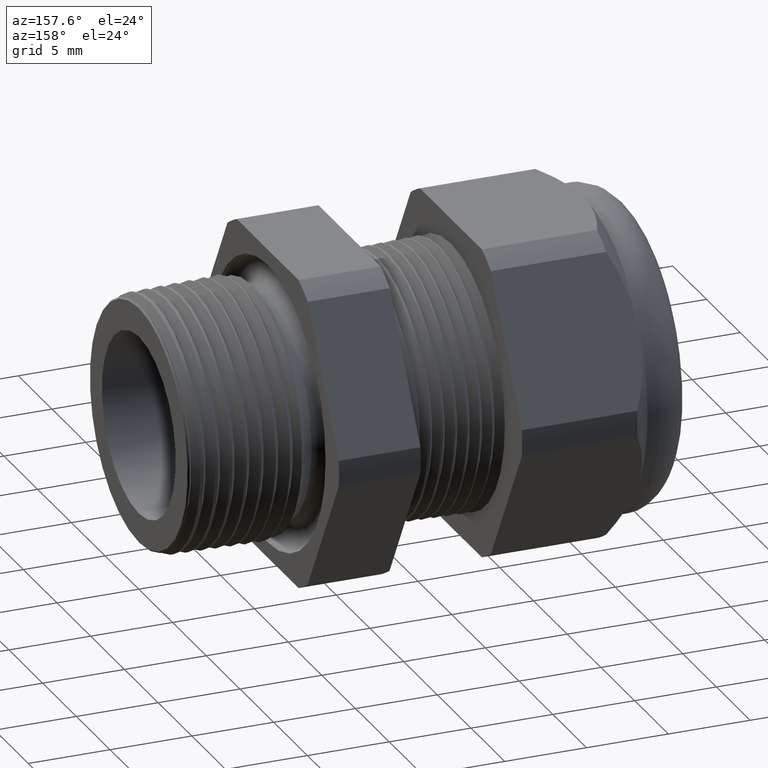
[diagram: clean part render]
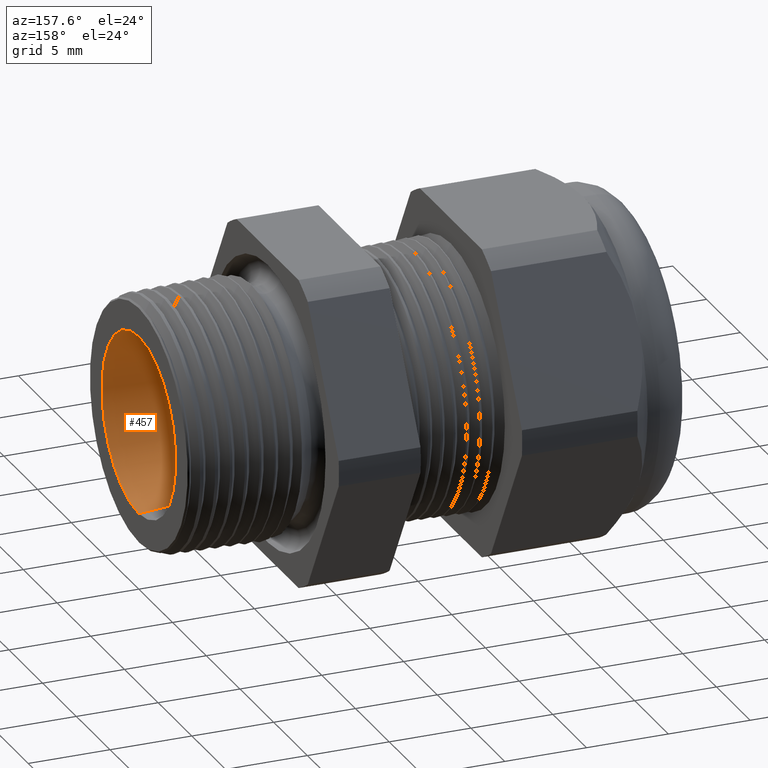
[diagram: same view with one face highlighted and labeled with its STEP entity id]
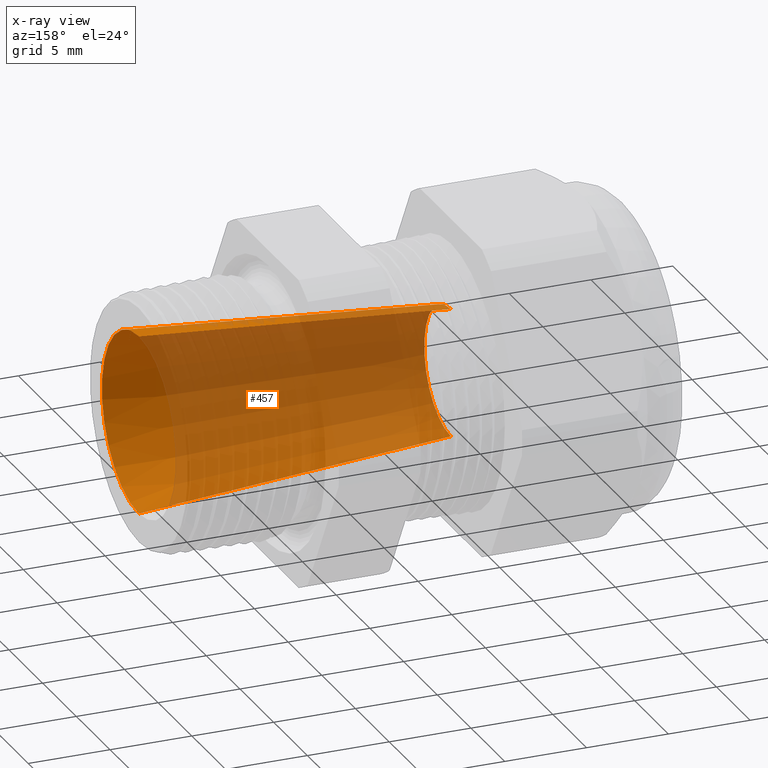
[diagram: x-ray of the same camera — body ghosted, the highlighted face saturated]
A machine part, auxiliary view. The second image highlights one B-rep face of the part: STEP entity #457.
The next image is the same camera in x-ray: the body ghosted, the highlighted face saturated — about 79% of this face is hidden behind the body in this view.
In plain terms, the highlighted conical surface has half-angle 4.594 deg.
Its self-contained STEP definition (entity closure, byte-faithful):
#374 = EDGE_LOOP ( 'NONE', ( #375, #376, #430, #434 ) ) ;
#375 = ORIENTED_EDGE ( 'NONE', *, *, #451, .F. ) ;
#376 = ORIENTED_EDGE ( 'NONE', *, *, #429, .T. ) ;
#377 = VERTEX_POINT ( 'NONE', #2270 ) ;
#429 = EDGE_CURVE ( 'NONE', #449, #377, #2370, .T. ) ;
#430 = ORIENTED_EDGE ( 'NONE', *, *, #431, .T. ) ;
#431 = EDGE_CURVE ( 'NONE', #377, #432, #2362, .T. ) ;
#432 = VERTEX_POINT ( 'NONE', #2357 ) ;
#434 = ORIENTED_EDGE ( 'NONE', *, *, #435, .F. ) ;
#435 = EDGE_CURVE ( 'NONE', #453, #432, #2355, .T. ) ;
#449 = VERTEX_POINT ( 'NONE', #2389 ) ;
#451 = EDGE_CURVE ( 'NONE', #449, #453, #2388, .T. ) ;
#453 = VERTEX_POINT ( 'NONE', #2382 ) ;
#457 = ADVANCED_FACE ( 'NONE', ( #2377 ), #2437, .F. ) ;
#2270 = CARTESIAN_POINT ( 'NONE',  ( 0.0000000000000000000, 2.637128431548126500E-017, 0.2153378781036457100 ) ) ;
#2352 = DIRECTION ( 'NONE',  ( 0.9967868727108976100, 0.0000000000000000000, -0.08009950306480637100 ) ) ;
#2353 = VECTOR ( 'NONE', #2352, 39.37007874015748900 ) ;
#2354 = CARTESIAN_POINT ( 'NONE',  ( -0.7508661417322833900, 0.0000000000000000000, -0.1550000000000000000 ) ) ;
#2355 = LINE ( 'NONE', #2354, #2353 ) ;
#2357 = CARTESIAN_POINT ( 'NONE',  ( 0.0000000000000000000, 0.0000000000000000000, -0.2153378781036457100 ) ) ;
#2358 = DIRECTION ( 'NONE',  ( 0.0000000000000000000, 0.0000000000000000000, -1.000000000000000000 ) ) ;
#2359 = DIRECTION ( 'NONE',  ( 1.000000000000000000, 0.0000000000000000000, 0.0000000000000000000 ) ) ;
#2360 = CARTESIAN_POINT ( 'NONE',  ( 0.0000000000000000000, 0.0000000000000000000, 0.0000000000000000000 ) ) ;
#2361 = AXIS2_PLACEMENT_3D ( 'NONE', #2360, #2359, #2358 ) ;
#2362 = CIRCLE ( 'NONE', #2361, 0.2153378781036457100 ) ;
#2363 = DIRECTION ( 'NONE',  ( 0.9967868727108976100, 9.809360004160873700E-018, 0.08009950306480637100 ) ) ;
#2364 = VECTOR ( 'NONE', #2363, 39.37007874015748900 ) ;
#2365 = CARTESIAN_POINT ( 'NONE',  ( -0.7508661417322833900, 1.898202538678397300E-017, 0.1550000000000000000 ) ) ;
#2370 = LINE ( 'NONE', #2365, #2364 ) ;
#2377 = FACE_OUTER_BOUND ( 'NONE', #374, .T. ) ;
#2382 = CARTESIAN_POINT ( 'NONE',  ( -0.7508661417322833900, 0.0000000000000000000, -0.1550000000000000000 ) ) ;
#2384 = DIRECTION ( 'NONE',  ( 0.0000000000000000000, 0.0000000000000000000, -1.000000000000000000 ) ) ;
#2385 = DIRECTION ( 'NONE',  ( 1.000000000000000000, 0.0000000000000000000, 0.0000000000000000000 ) ) ;
#2386 = CARTESIAN_POINT ( 'NONE',  ( -0.7508661417322833900, 0.0000000000000000000, 0.0000000000000000000 ) ) ;
#2387 = AXIS2_PLACEMENT_3D ( 'NONE', #2386, #2385, #2384 ) ;
#2388 = CIRCLE ( 'NONE', #2387, 0.1550000000000000000 ) ;
#2389 = CARTESIAN_POINT ( 'NONE',  ( -0.7508661417322833900, 2.267665485113261700E-017, 0.1550000000000000000 ) ) ;
#2433 = DIRECTION ( 'NONE',  ( 0.0000000000000000000, 0.0000000000000000000, -1.000000000000000000 ) ) ;
#2434 = DIRECTION ( 'NONE',  ( 1.000000000000000000, 0.0000000000000000000, 0.0000000000000000000 ) ) ;
#2435 = CARTESIAN_POINT ( 'NONE',  ( -0.7508661417322833900, 0.0000000000000000000, 0.0000000000000000000 ) ) ;
#2436 = AXIS2_PLACEMENT_3D ( 'NONE', #2435, #2434, #2433 ) ;
#2437 = CONICAL_SURFACE ( 'NONE', #2436, 0.1550000000000000000, 0.08018540344487300200 ) ;